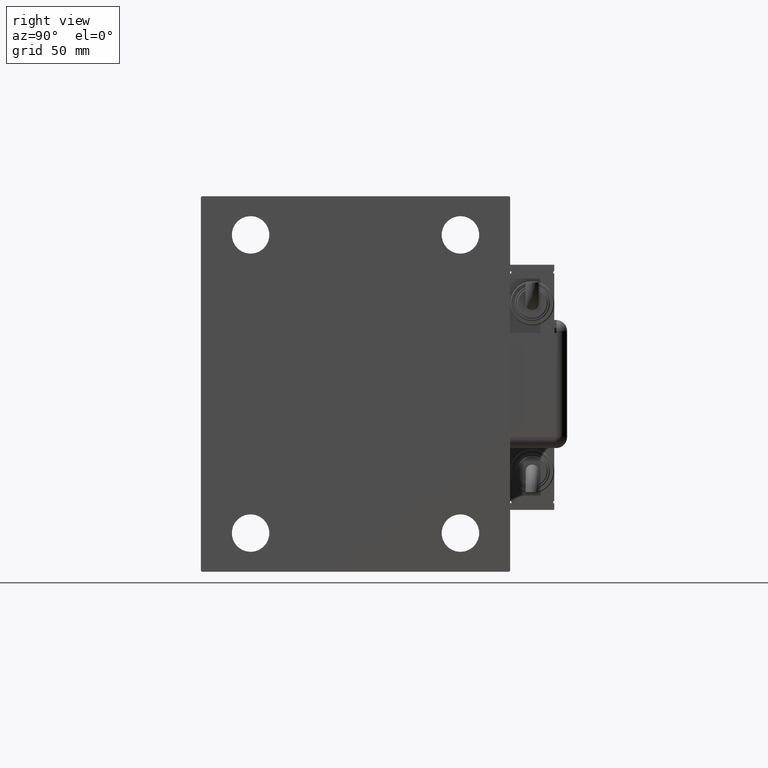
[diagram: clean part render]
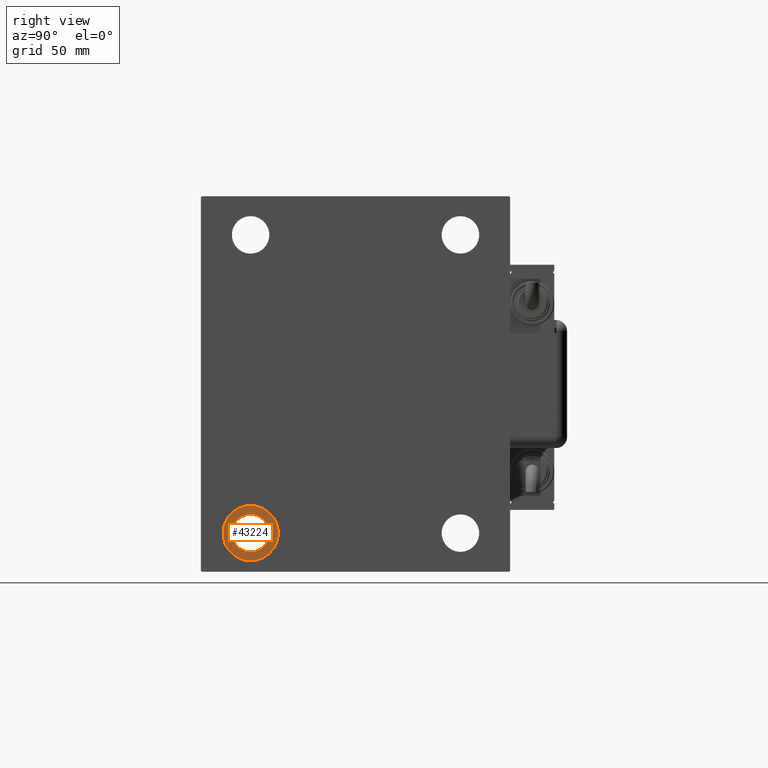
[diagram: same view with one face highlighted and labeled with its STEP entity id]
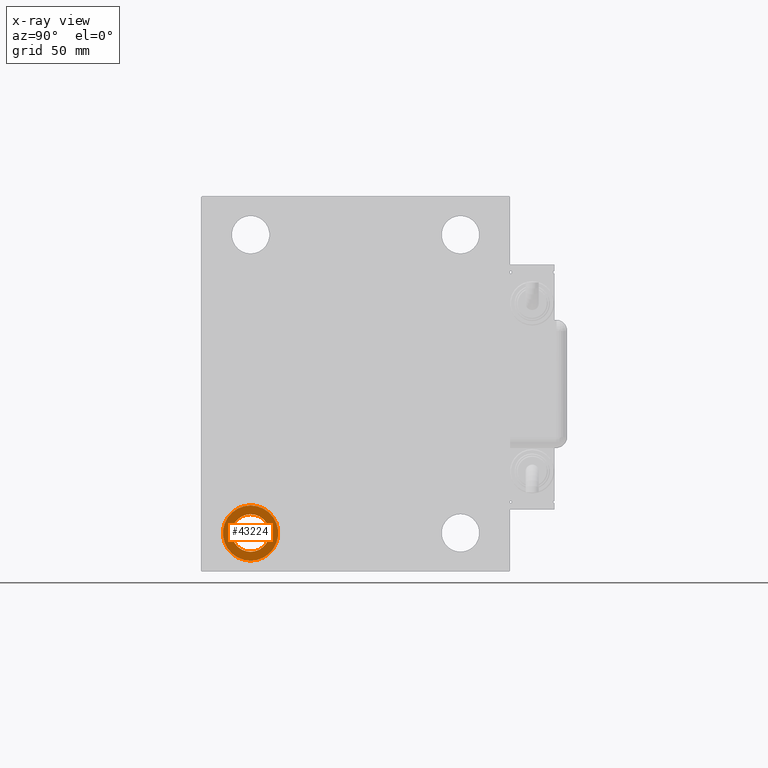
[diagram: x-ray of the same camera — body ghosted, the highlighted face saturated]
A machine part, right view. The second image highlights one B-rep face of the part: STEP entity #43224.
The next image is the same camera in x-ray: the body ghosted, the highlighted face saturated — about 0% of this face is hidden behind the body in this view.
In plain terms, the highlighted planar face has unit normal (1, 0, 0).
Its self-contained STEP definition (entity closure, byte-faithful):
#1033 = DIRECTION ( 'NONE',  ( -1.000000000000000000, -0.000000000000000000, -0.000000000000000000 ) ) ;
#3859 = DIRECTION ( 'NONE',  ( 0.000000000000000000, 0.000000000000000000, -1.000000000000000000 ) ) ;
#5399 = AXIS2_PLACEMENT_3D ( 'NONE', #41236, #54644, #31324 ) ;
#8296 = CARTESIAN_POINT ( 'NONE',  ( 108.0000000000000000, -47.49999999999999289, -55.00000000000000711 ) ) ;
#8366 = CIRCLE ( 'NONE', #5399, 8.499999999999992895 ) ;
#8843 = CARTESIAN_POINT ( 'NONE',  ( 108.0000000000000000, 0.000000000000000000, 0.000000000000000000 ) ) ;
#9324 = EDGE_LOOP ( 'NONE', ( #60458, #48674 ) ) ;
#9648 = DIRECTION ( 'NONE',  ( 0.000000000000000000, 0.000000000000000000, 1.000000000000000000 ) ) ;
#11643 = AXIS2_PLACEMENT_3D ( 'NONE', #8843, #46788, #55222 ) ;
#11961 = CARTESIAN_POINT ( 'NONE',  ( 108.0000000000000000, -47.49999999999999289, -67.50000000000000000 ) ) ;
#13312 = AXIS2_PLACEMENT_3D ( 'NONE', #51940, #46965, #9648 ) ;
#15315 = EDGE_CURVE ( 'NONE', #27780, #38969, #60084, .T. ) ;
#15570 = CARTESIAN_POINT ( 'NONE',  ( 108.0000000000000000, -47.49999999999999289, -76.00000000000000000 ) ) ;
#16184 = CIRCLE ( 'NONE', #22176, 8.499999999999992895 ) ;
#16406 = AXIS2_PLACEMENT_3D ( 'NONE', #11961, #1033, #49888 ) ;
#22176 = AXIS2_PLACEMENT_3D ( 'NONE', #31899, #50850, #3859 ) ;
#27780 = VERTEX_POINT ( 'NONE', #8296 ) ;
#28948 = ORIENTED_EDGE ( 'NONE', *, *, #15315, .F. ) ;
#29257 = ORIENTED_EDGE ( 'NONE', *, *, #32640, .F. ) ;
#31324 = DIRECTION ( 'NONE',  ( 0.000000000000000000, 0.000000000000000000, -1.000000000000000000 ) ) ;
#31899 = CARTESIAN_POINT ( 'NONE',  ( 108.0000000000000000, -47.49999999999999289, -67.50000000000000000 ) ) ;
#31989 = CARTESIAN_POINT ( 'NONE',  ( 108.0000000000000000, -47.49999999999999289, -59.00000000000001421 ) ) ;
#32512 = FACE_OUTER_BOUND ( 'NONE', #60537, .T. ) ;
#32640 = EDGE_CURVE ( 'NONE', #38969, #27780, #40149, .T. ) ;
#32953 = VERTEX_POINT ( 'NONE', #31989 ) ;
#33344 = EDGE_CURVE ( 'NONE', #32953, #60589, #8366, .T. ) ;
#38969 = VERTEX_POINT ( 'NONE', #39342 ) ;
#39342 = CARTESIAN_POINT ( 'NONE',  ( 108.0000000000000000, -47.49999999999999289, -80.00000000000000000 ) ) ;
#40149 = CIRCLE ( 'NONE', #13312, 12.49999999999999645 ) ;
#41236 = CARTESIAN_POINT ( 'NONE',  ( 108.0000000000000000, -47.49999999999999289, -67.50000000000000000 ) ) ;
#43224 = ADVANCED_FACE ( 'NONE', ( #32512, #51457 ), #50251, .T. ) ;
#46788 = DIRECTION ( 'NONE',  ( 1.000000000000000000, 0.000000000000000000, -0.000000000000000000 ) ) ;
#46965 = DIRECTION ( 'NONE',  ( -1.000000000000000000, -0.000000000000000000, -0.000000000000000000 ) ) ;
#48674 = ORIENTED_EDGE ( 'NONE', *, *, #57854, .T. ) ;
#49888 = DIRECTION ( 'NONE',  ( 0.000000000000000000, 0.000000000000000000, 1.000000000000000000 ) ) ;
#50251 = PLANE ( 'NONE',  #11643 ) ;
#50850 = DIRECTION ( 'NONE',  ( -1.000000000000000000, -0.000000000000000000, -0.000000000000000000 ) ) ;
#51457 = FACE_BOUND ( 'NONE', #9324, .T. ) ;
#51940 = CARTESIAN_POINT ( 'NONE',  ( 108.0000000000000000, -47.49999999999999289, -67.50000000000000000 ) ) ;
#54644 = DIRECTION ( 'NONE',  ( -1.000000000000000000, -0.000000000000000000, -0.000000000000000000 ) ) ;
#55222 = DIRECTION ( 'NONE',  ( 0.000000000000000000, 0.000000000000000000, 1.000000000000000000 ) ) ;
#57854 = EDGE_CURVE ( 'NONE', #60589, #32953, #16184, .T. ) ;
#60084 = CIRCLE ( 'NONE', #16406, 12.49999999999999645 ) ;
#60458 = ORIENTED_EDGE ( 'NONE', *, *, #33344, .T. ) ;
#60537 = EDGE_LOOP ( 'NONE', ( #29257, #28948 ) ) ;
#60589 = VERTEX_POINT ( 'NONE', #15570 ) ;